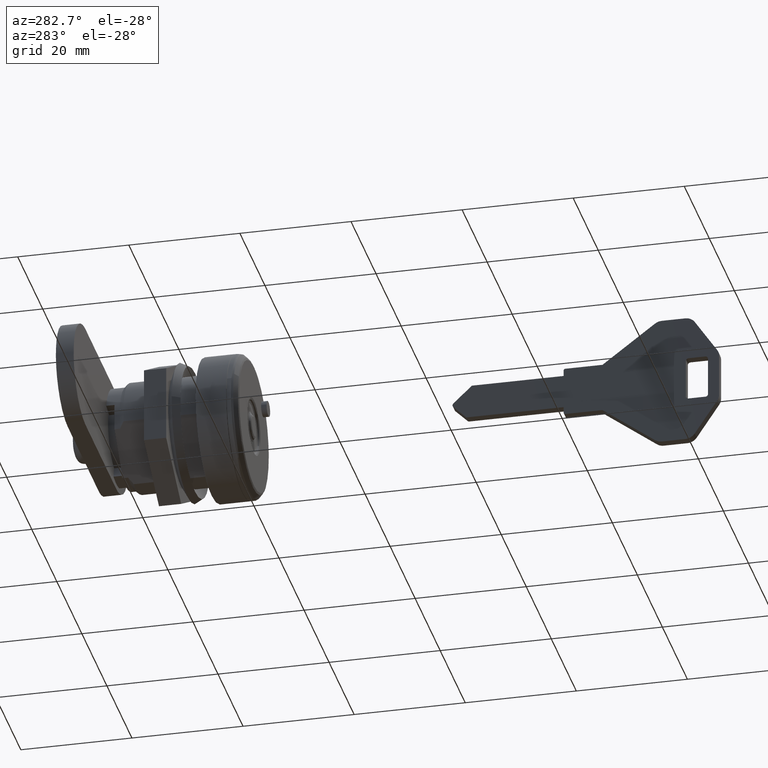
[diagram: clean part render]
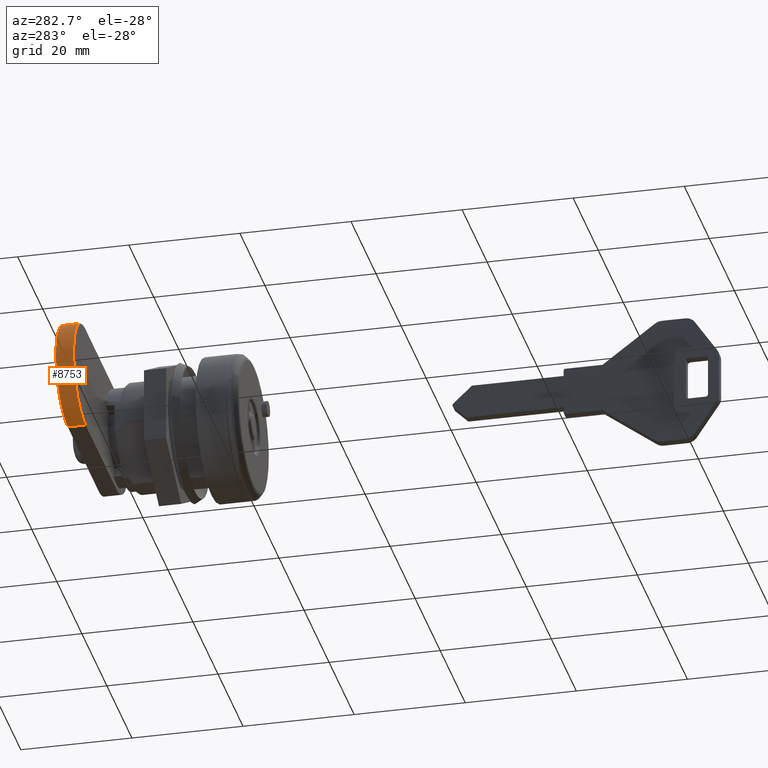
[diagram: same view with one face highlighted and labeled with its STEP entity id]
A machine part, auxiliary view. The second image highlights one B-rep face of the part: STEP entity #8753.
In plain terms, the highlighted face is a freeform B-spline surface patch.
Its self-contained STEP definition (entity closure, byte-faithful):
#8685=CARTESIAN_POINT('',(28.080000000000009,24.251318991065240,-9.496744587267788));
#8686=CARTESIAN_POINT('',(24.718000000000000,24.251318991065240,-9.496744587267788));
#8687=CARTESIAN_POINT('',(28.080000000000005,34.171747809242568,-9.756520158233293));
#8688=CARTESIAN_POINT('',(24.717999999999993,34.171747809242568,-9.756520158233293));
#8689=CARTESIAN_POINT('',(28.080000000000009,33.998553103975752,0.165797861154179));
#8690=CARTESIAN_POINT('',(24.718000000000000,33.998553103975752,0.165797861154179));
#8691=CARTESIAN_POINT('',(28.080000000000005,33.825358398708943,10.088115880541645));
#8692=CARTESIAN_POINT('',(24.717999999999993,33.825358398708943,10.088115880541645));
#8693=CARTESIAN_POINT('',(28.080000000000009,23.920038874408920,9.482280585007725));
#8694=CARTESIAN_POINT('',(24.718000000000000,23.920038874408920,9.482280585007725));
#8702=(BOUNDED_SURFACE()B_SPLINE_SURFACE(1,2,((#8685,#8687,#8689,#8691,#8693),(#8686,#8688,#8690,#8692,#8694)),.UNSPECIFIED.,.F.,.F.,.U.)B_SPLINE_SURFACE_WITH_KNOTS((2,2),(3,2,3),(0.0,3.362000000000009),(0.0,16.227974395134680,32.455948790269353),.UNSPECIFIED.)GEOMETRIC_REPRESENTATION_ITEM()RATIONAL_B_SPLINE_SURFACE(((1.0,0.691513055782269,1.0,0.691513055782269,1.0),(1.0,0.691513055782269,1.0,0.691513055782269,1.0)))REPRESENTATION_ITEM('')SURFACE());
#8703=CARTESIAN_POINT('',(24.800000000000001,24.499999999990049,-9.500000000000000));
#8704=VERTEX_POINT('',#8703);
#8705=CARTESIAN_POINT('',(24.800000000000001,24.499999999990049,9.500000000000000));
#8706=VERTEX_POINT('',#8705);
#8707=CARTESIAN_POINT('',(24.800000000000001,24.499999999990049,-9.499999999999998));
#8708=CARTESIAN_POINT('',(24.800000000000001,33.999999999990045,-9.499999999999998));
#8709=CARTESIAN_POINT('',(24.800000000000001,33.999999999990052,1.500143E-015));
#8710=CARTESIAN_POINT('',(24.800000000000001,33.999999999990045,9.500000000000002));
#8711=CARTESIAN_POINT('',(24.800000000000001,24.499999999990049,9.500000000000002));
#8719=(BOUNDED_CURVE()B_SPLINE_CURVE(2,(#8707,#8708,#8709,#8710,#8711),.UNSPECIFIED.,.F.,.U.)B_SPLINE_CURVE_WITH_KNOTS((3,2,3),(0.0,0.500000000000000,1.0),.UNSPECIFIED.)CURVE()GEOMETRIC_REPRESENTATION_ITEM()RATIONAL_B_SPLINE_CURVE((1.0,0.707106781186548,1.0,0.707106781186548,1.0))REPRESENTATION_ITEM(''));
#8720=EDGE_CURVE('',#8704,#8706,#8719,.T.);
#8721=ORIENTED_EDGE('',*,*,#8720,.T.);
#8722=CARTESIAN_POINT('',(28.0,24.499999999990049,9.500000000000000));
#8723=VERTEX_POINT('',#8722);
#8724=CARTESIAN_POINT('',(28.0,24.499999999990049,9.500000000000000));
#8725=CARTESIAN_POINT('',(24.800000000000001,24.499999999990049,9.500000000000000));
#8726=QUASI_UNIFORM_CURVE('',1,(#8724,#8725),.UNSPECIFIED.,.F.,.U.);
#8727=EDGE_CURVE('',#8723,#8706,#8726,.T.);
#8728=ORIENTED_EDGE('',*,*,#8727,.F.);
#8729=CARTESIAN_POINT('',(28.0,24.499999999990049,-9.500000000000000));
#8730=VERTEX_POINT('',#8729);
#8731=CARTESIAN_POINT('',(28.0,24.499999999990049,-9.499999999999998));
#8732=CARTESIAN_POINT('',(27.999999999999996,33.999999999990045,-9.499999999999998));
#8733=CARTESIAN_POINT('',(28.0,33.999999999990052,1.500143E-015));
#8734=CARTESIAN_POINT('',(27.999999999999996,33.999999999990045,9.500000000000002));
#8735=CARTESIAN_POINT('',(28.0,24.499999999990049,9.500000000000002));
#8743=(BOUNDED_CURVE()B_SPLINE_CURVE(2,(#8731,#8732,#8733,#8734,#8735),.UNSPECIFIED.,.F.,.U.)B_SPLINE_CURVE_WITH_KNOTS((3,2,3),(0.0,0.500000000000000,1.0),.UNSPECIFIED.)CURVE()GEOMETRIC_REPRESENTATION_ITEM()RATIONAL_B_SPLINE_CURVE((1.0,0.707106781186548,1.0,0.707106781186548,1.0))REPRESENTATION_ITEM(''));
#8744=EDGE_CURVE('',#8730,#8723,#8743,.T.);
#8745=ORIENTED_EDGE('',*,*,#8744,.F.);
#8746=CARTESIAN_POINT('',(28.0,24.499999999990049,-9.500000000000000));
#8747=CARTESIAN_POINT('',(24.800000000000001,24.499999999990049,-9.500000000000000));
#8748=QUASI_UNIFORM_CURVE('',1,(#8746,#8747),.UNSPECIFIED.,.F.,.U.);
#8749=EDGE_CURVE('',#8730,#8704,#8748,.T.);
#8750=ORIENTED_EDGE('',*,*,#8749,.T.);
#8751=EDGE_LOOP('',(#8721,#8728,#8745,#8750));
#8752=FACE_OUTER_BOUND('',#8751,.T.);
#8753=ADVANCED_FACE('',(#8752),#8702,.T.);